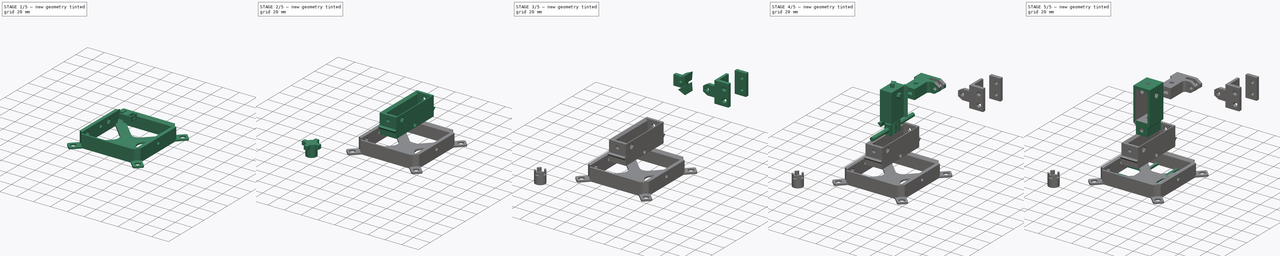
[diagram: build sequence overview — one tinted view per stage of 5, left to right]
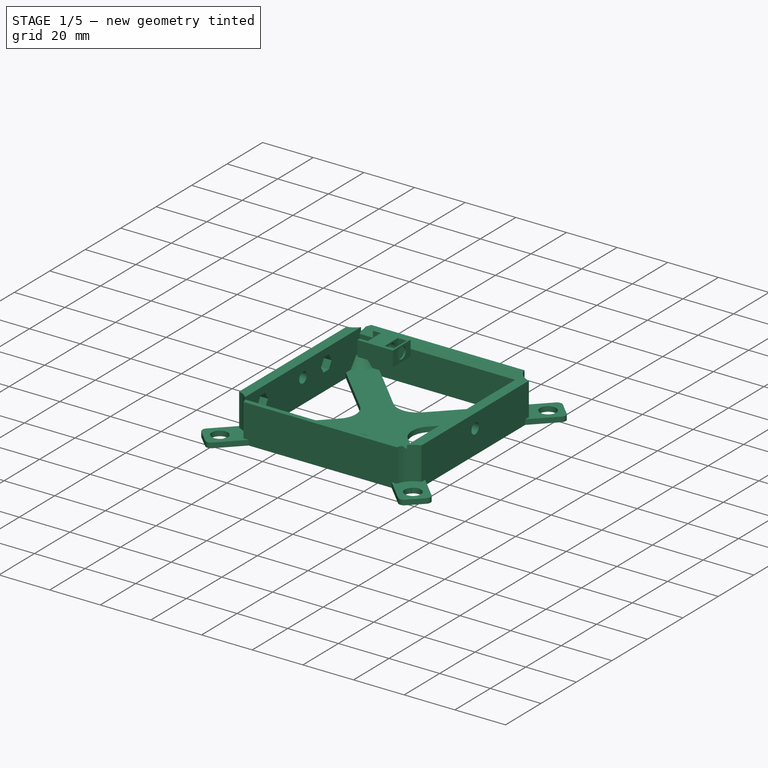
[diagram: stage 1 of 5 — iso view after this stage's code; geometry added in this stage tinted green]
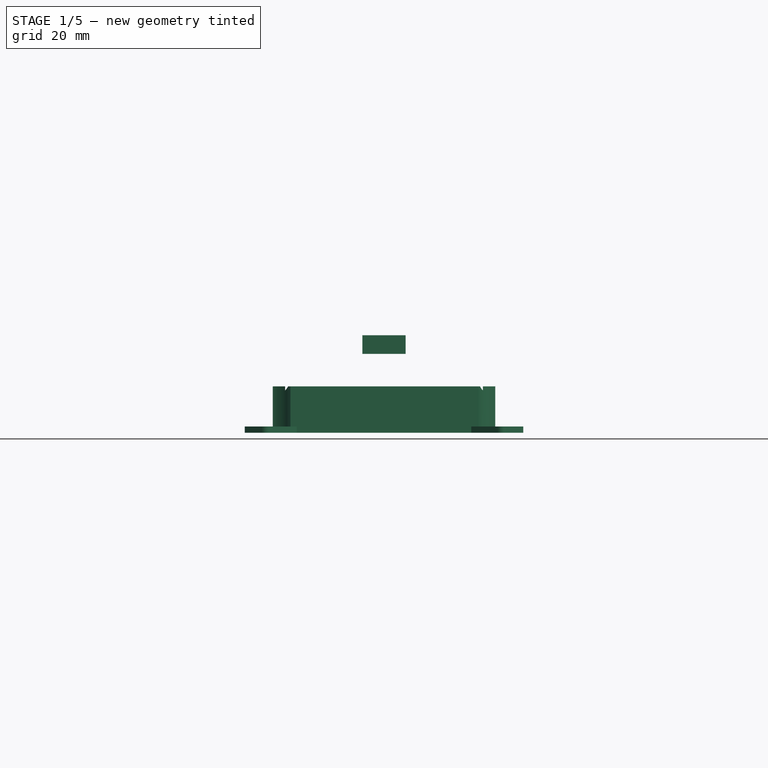
[diagram: stage 1 of 5 — front view after this stage's code; geometry added in this stage tinted green]
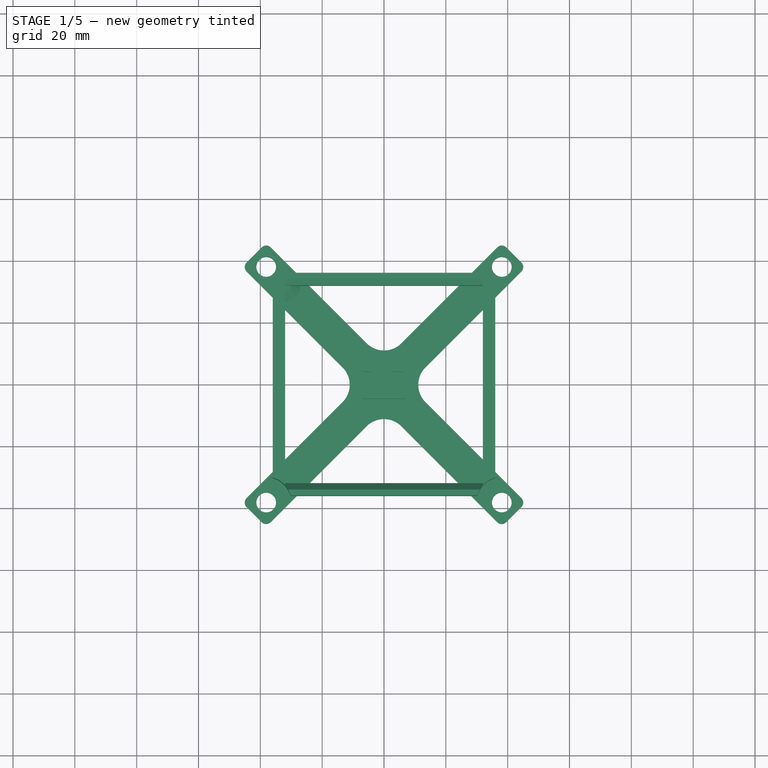
[diagram: stage 1 of 5 — top view after this stage's code; geometry added in this stage tinted green]
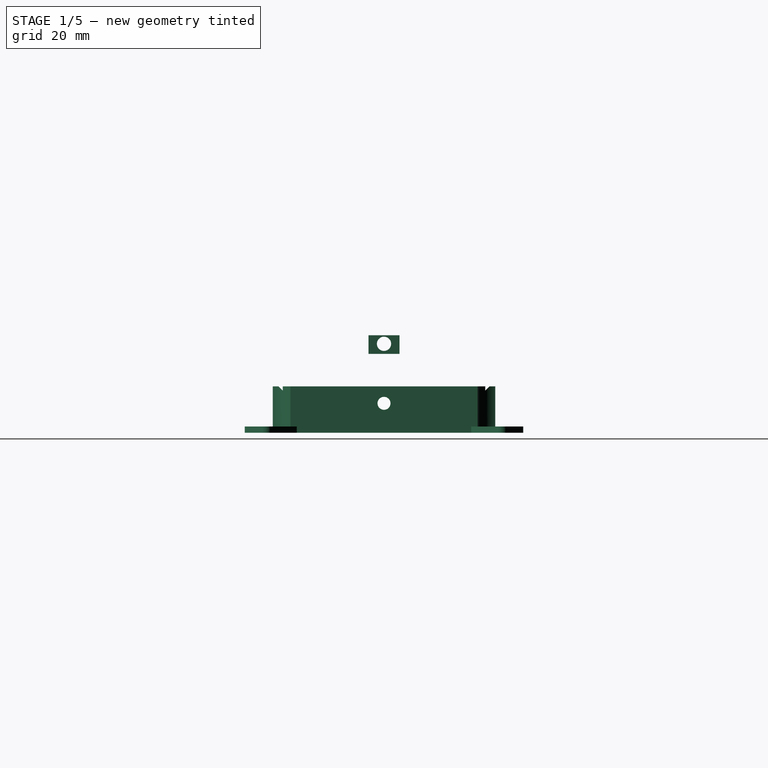
[diagram: stage 1 of 5 — right view after this stage's code; geometry added in this stage tinted green]
FCSTD DOCUMENT  (FreeCAD 0.19R23634 (Git))
Label: linearstage
License: All rights reserved
LicenseURL: http://en.wikipedia.org/wiki/All_rights_reserved
objects: Part::Box×30, Part::Prism×23, Part::Cylinder×20, Part::MultiFuse×14, Part::Cut×8, PartDesign::FeatureBase×7, PartDesign::Body×7, PartDesign::CoordinateSystem×4, Sketcher::SketchObject×3, App::Part×2, PartDesign::Pad×1, PartDesign::Pocket×1, PartDesign::Revolution×1
note: 122 computed .brp shape members not serialized (recipe doc carries the construction recipe); baked Part::Feature solids carry a one-line shape summary decoded from their .brp

FEATURE [Part::Box] cube
  AttacherType = Attacher::AttachEngine3D
  Height = 15
  Length = 72
  Placement = pos=(-36,-36,-17) rot=(0,0,1;0rad)
  Width = 72
FEATURE [Part::Box] cube001
  AttacherType = Attacher::AttachEngine3D
  Height = 15
  Length = 64
  Placement = pos=(-32,-32,-17) rot=(0,0,1;0rad)
  Width = 64
FEATURE [Part::Cylinder] cylinder
  Angle = 360
  AttacherType = Attacher::AttachEngine3D
  Height = 73
  Placement = pos=(-36.5,8e-15,-7.5) rot=(0.57735,0.57735,0.57735;2.0944rad)
  Radius = 2.1
FEATURE [Part::Prism] prism
  AttacherType = Attacher::AttachEngine3D
  Circumradius = 3
  FirstAngle = 0
  Height = 64
  Placement = pos=(-32,32,-2) rot=(0.621515,0.476905,0.621515;2.25159rad)
  Polygon = 3
  SecondAngle = 0
FEATURE [Part::Prism] prism001
  AttacherType = Attacher::AttachEngine3D
  Circumradius = 3
  FirstAngle = 0
  Height = 64
  Placement = pos=(-32,-32,-2) rot=(0.621515,-0.476905,0.621515;4.0316rad)
  Polygon = 3
  SecondAngle = 0
FEATURE [Part::Prism] prism002
  AttacherType = Attacher::AttachEngine3D
  Circumradius = 3.1
  FirstAngle = 0
  Height = 3
  Placement = pos=(-35,13.05,-7.5) rot=(0.57735,0.57735,0.57735;2.0944rad)
  Polygon = 6
  SecondAngle = 0
FEATURE [Part::Prism] prism003
  AttacherType = Attacher::AttachEngine3D
  Circumradius = 3.1
  FirstAngle = 0
  Height = 3
  Placement = pos=(-35,-22.85,-7.5) rot=(0.57735,0.57735,0.57735;2.0944rad)
  Polygon = 6
  SecondAngle = 0
FEATURE [Part::Cylinder] cylinder001
  Angle = 360
  AttacherType = Attacher::AttachEngine3D
  Height = 6
  Placement = pos=(-36.5,13.05,-7.5) rot=(0.57735,0.57735,0.57735;2.0944rad)
  Radius = 1.8
FEATURE [Part::Cylinder] cylinder002
  Angle = 360
  AttacherType = Attacher::AttachEngine3D
  Height = 6
  Placement = pos=(-36.5,-22.85,-7.5) rot=(0.57735,0.57735,0.57735;2.0944rad)
  Radius = 1.8
FEATURE [Part::MultiFuse] Group
  Shapes = -> [cube001,cylinder,prism,prism001,prism002,prism003,cylinder001,cylinder002]
FEATURE [Part::Cut] difference
  Base = -> cube
  Tool = -> Group
FEATURE [Part::Box] cube012
  AttacherType = Attacher::AttachEngine3D
  Height = 6
  Length = 14
  Placement = pos=(-7,-5,8.5) rot=(0,0,1;0rad)
  Width = 10
FEATURE [Part::Cylinder] cylinder009
  Angle = 360
  AttacherType = Attacher::AttachEngine3D
  Height = 71
  Placement = pos=(-35.5,8e-15,11.75) rot=(0.57735,0.57735,0.57735;2.0944rad)
  Radius = 2.3
FEATURE [Part::Box] cube013
  AttacherType = Attacher::AttachEngine3D
  Height = 6
  Length = 3.2
  Placement = pos=(-7,-3.7,8.5) rot=(0,0,1;0rad)
  Width = 7.4
FEATURE [Part::Box] cube014
  AttacherType = Attacher::AttachEngine3D
  Height = 6
  Length = 3.52
  Placement = pos=(2.85194,-3.7,8.5) rot=(0,0,1;0rad)
  Width = 7.4
FEATURE [Part::MultiFuse] Group005
  Shapes = -> [cylinder009,cube013,cube014]
FEATURE [Part::Cut] difference003
  Base = -> cube012
  Tool = -> Group005
FEATURE [PartDesign::FeatureBase] BaseFeature
  BaseFeature = -> difference
FEATURE [PartDesign::Body] Body007  label="Nut"
  BaseFeature = -> difference007
  Group = -> [BaseFeature007]
  Origin = -> Origin007
  Tip = -> BaseFeature007
FEATURE [Sketcher::SketchObject] Sketch001
  FullyConstrained = true
  MapMode = 5
  Placement = pos=(0,0,-17) rot=(1,0,0;3.14159rad)
  sketch-geometry (28):
    g0: Circle CenterX=-38.1 CenterY=38.1 CenterZ=0 NormalX=0 NormalY=0 NormalZ=1 AngleXU=0 Radius=3.175
    g1: Circle CenterX=38.1 CenterY=38.1 CenterZ=0 NormalX=0 NormalY=0 NormalZ=1 AngleXU=0 Radius=3.175
    g2: Circle CenterX=-38.1 CenterY=-38.1 CenterZ=0 NormalX=0 NormalY=0 NormalZ=1 AngleXU=0 Radius=3.175
    g3: Circle CenterX=38.1 CenterY=-38.1 CenterZ=0 NormalX=0 NormalY=0 NormalZ=1 AngleXU=0 Radius=3.175
    g4: LineSegment StartX=-44.464 StartY=36.6858 StartZ=0 EndX=-13.435 EndY=5.65685 EndZ=0
    g5: LineSegment StartX=-13.435 StartY=-5.65685 StartZ=0 EndX=-44.464 EndY=-36.6858 EndZ=0
    g6: LineSegment StartX=-44.464 StartY=-39.5142 StartZ=0 EndX=-39.5142 EndY=-44.464 EndZ=0
    g7: LineSegment StartX=-36.6858 StartY=-44.464 StartZ=0 EndX=-5.65685 EndY=-13.435 EndZ=0
    g8: LineSegment StartX=5.65685 StartY=-13.435 StartZ=0 EndX=36.6858 EndY=-44.464 EndZ=0
    g9: LineSegment StartX=39.5142 StartY=-44.464 StartZ=0 EndX=44.464 EndY=-39.5142 EndZ=0
    g10: LineSegment StartX=44.464 StartY=-36.6858 StartZ=0 EndX=13.435 EndY=-5.65685 EndZ=0
    g11: LineSegment StartX=13.435 StartY=5.65685 StartZ=0 EndX=44.464 EndY=36.6858 EndZ=0
    g12: LineSegment StartX=44.464 StartY=39.5142 StartZ=0 EndX=39.5142 EndY=44.464 EndZ=0
    g13: LineSegment StartX=36.6858 StartY=44.464 StartZ=0 EndX=5.65685 EndY=13.435 EndZ=0
    g14: LineSegment StartX=-5.65685 StartY=13.435 StartZ=0 EndX=-36.6858 EndY=44.464 EndZ=0
    g15: LineSegment StartX=-39.5142 StartY=44.464 StartZ=0 EndX=-44.464 EndY=39.5142 EndZ=0
    g16: ArcOfCircle CenterX=-43.0497 CenterY=38.1 CenterZ=0 NormalX=0 NormalY=0 NormalZ=1 AngleXU=0 Radius=2 StartAngle=2.35619 EndAngle=3.92699
    g17: ArcOfCircle CenterX=-38.1 CenterY=43.0497 CenterZ=0 NormalX=0 NormalY=0 NormalZ=1 AngleXU=0 Radius=2 StartAngle=0.785398 EndAngle=2.35619
    g18: ArcOfCircle CenterX=38.1 CenterY=43.0497 CenterZ=0 NormalX=0 NormalY=0 NormalZ=1 AngleXU=0 Radius=2 StartAngle=0.785398 EndAngle=2.35619
    g19: ArcOfCircle CenterX=43.0497 CenterY=38.1 CenterZ=0 NormalX=0 NormalY=0 NormalZ=1 AngleXU=0 Radius=2 StartAngle=5.49779 EndAngle=7.06858
    g20: ArcOfCircle CenterX=43.0497 CenterY=-38.1 CenterZ=0 NormalX=0 NormalY=0 NormalZ=1 AngleXU=0 Radius=2 StartAngle=5.49779 EndAngle=7.06858
    g21: ArcOfCircle CenterX=38.1 CenterY=-43.0497 CenterZ=0 NormalX=0 NormalY=0 NormalZ=1 AngleXU=0 Radius=2 StartAngle=3.92699 EndAngle=5.49779
    g22: ArcOfCircle CenterX=-38.1 CenterY=-43.0497 CenterZ=0 NormalX=0 NormalY=0 NormalZ=1 AngleXU=0 Radius=2 StartAngle=3.92699 EndAngle=5.49779
    g23: ArcOfCircle CenterX=-43.0497 CenterY=-38.1 CenterZ=0 NormalX=0 NormalY=0 NormalZ=1 AngleXU=0 Radius=2 StartAngle=2.35619 EndAngle=3.92699
    g24: ArcOfCircle CenterX=-3e-15 CenterY=-19.0919 CenterZ=0 NormalX=0 NormalY=0 NormalZ=1 AngleXU=0 Radius=8 StartAngle=0.785398 EndAngle=2.35619
    g25: ArcOfCircle CenterX=19.0919 CenterY=1.4e-15 CenterZ=0 NormalX=0 NormalY=0 NormalZ=1 AngleXU=0 Radius=8 StartAngle=2.35619 EndAngle=3.92699
    g26: ArcOfCircle CenterX=-19.0919 CenterY=3.2e-15 CenterZ=0 NormalX=0 NormalY=0 NormalZ=1 AngleXU=0 Radius=8 StartAngle=5.49779 EndAngle=7.06858
    g27: ArcOfCircle CenterX=2.8e-15 CenterY=19.0919 CenterZ=0 NormalX=0 NormalY=0 NormalZ=1 AngleXU=0 Radius=8 StartAngle=3.92699 EndAngle=5.49779
  constraints (63):
    c: Diameter(g0) = 6.35
    c: Equal(g1,g3)
    c: Equal(g3,g2)
    c: DistanceX(g0,g1) = 76.2
    c: DistanceY(g2,g0) = 76.2
    c: Horizontal(g2,g3)
    c: Vertical(g3,g1)
    c: Symmetric(g0,g1,g-2)
    c: Symmetric(g0,g2,g-1)
    c: Equal(g0,g1)
    c: Parallel(g15,g9)
    c: Parallel(g9,g11)
    c: Parallel(g11,g13)
    c: Parallel(g13,g5)
    c: Parallel(g5,g7)
    c: Angle(g15) = -2.35619
    c: Parallel(g6,g4)
    c: Parallel(g4,g8)
    c: Parallel(g8,g10)
    c: Parallel(g10,g14)
    c: Parallel(g14,g12)
    c: Angle(g12) = 2.35619
    c: Tangent(g4,g16) = -1.5708
    c: Tangent(g15,g16) = -1.5708
    c: Tangent(g15,g17) = -1.5708
    c: Tangent(g14,g17) = -1.5708
    c: Tangent(g13,g18) = -1.5708
    c: Tangent(g12,g18) = -1.5708
    c: Tangent(g12,g19) = -1.5708
    c: Tangent(g11,g19) = -1.5708
    c: Tangent(g10,g20) = -1.5708
    c: Tangent(g9,g20) = -1.5708
    c: Tangent(g9,g21) = -1.5708
    c: Tangent(g8,g21) = -1.5708
    c: Tangent(g7,g22) = -1.5708
    c: Tangent(g6,g22) = -1.5708
    c: Tangent(g6,g23) = -1.5708
    c: Tangent(g5,g23) = -1.5708
    c: Tangent(g7,g24) = 1.5708
    c: Tangent(g8,g24) = 1.5708
    c: Tangent(g10,g25) = 1.5708
    c: Tangent(g11,g25) = 1.5708
    c: Tangent(g4,g26) = 1.5708
    c: Tangent(g5,g26) = 1.5708
    c: Tangent(g14,g27) = 1.5708
    c: Tangent(g13,g27) = 1.5708
    c: Diameter(g16) = 4
    c: Equal(g16, g17-g20) x4
    c: Equal(g16,g22)
    c: Equal(g16,g23)
    c: Diameter(g24) = 16
    c: Equal(g24,g26)
    c: Equal(g24,g27)
    c: Equal(g24,g25)
    c: Symmetric(g7,g8,g-2)
    c: Symmetric(g5,g4,g-1)
    c: Symmetric(g14,g13,g-2)
    c: Symmetric(g10,g11,g-1)
    c: Distance(g1,g12) = 5.5
    c: Distance(g1,g13) = 5.5
    c: Distance(g1,g11) = 5.5
    c: Distance(g2,g5) = 5.5
    c: Distance(g2,g7) = 5.5
FEATURE [PartDesign::Pad] Pad
  BaseFeature = -> BaseFeature
  Direction = (1,1,1)
  Length = 2
  Length2 = 100
  Profile = -> Sketch001
  Reversed = true
  Type = 0
FEATURE [Sketcher::SketchObject] Sketch
  FullyConstrained = true
  MapMode = 5
  Placement = pos=(0,0,-2) rot=(0,0,1;0rad)
  Support = -> [Pad]
  sketch-geometry (4):
    g0: Circle CenterX=-38.1 CenterY=-38.1 CenterZ=0 NormalX=0 NormalY=0 NormalZ=1 AngleXU=0 Radius=8.125
    g1: Circle CenterX=38.1 CenterY=-38.1 CenterZ=0 NormalX=0 NormalY=0 NormalZ=1 AngleXU=0 Radius=8.125
    g2: Circle CenterX=38.1 CenterY=38.1 CenterZ=0 NormalX=0 NormalY=0 NormalZ=1 AngleXU=0 Radius=8.125
    g3: Circle CenterX=-38.1 CenterY=38.1 CenterZ=0 NormalX=0 NormalY=0 NormalZ=1 AngleXU=0 Radius=8.125
  constraints (10):
    c: DistanceX(g3,g2) = 76.2
    c: Symmetric(g3,g2,g-2)
    c: DistanceY(g0,g3) = 76.2
    c: Horizontal(g0,g1)
    c: Symmetric(g3,g0,g-1)
    c: Vertical(g1,g2)
    c: Diameter(g0) = 16.25
    c: Equal(g0,g1)
    c: Equal(g1,g2)
    c: Equal(g2,g3)
FEATURE [PartDesign::Pocket] Pocket
  BaseFeature = -> Pad
  Length = 13
  Length2 = 100
  Profile = -> Sketch
  Type = 0
FEATURE [Sketcher::SketchObject] Sketch002
  ExternalGeometry = -> [Pocket]
  FullyConstrained = true
  MapMode = 5
  Placement = pos=(0,32,0) rot=(1,0,0;1.5708rad)
  Support = -> [Pocket]
  sketch-geometry (4):
    g0: LineSegment StartX=-32 StartY=-15 StartZ=0 EndX=-32 EndY=-11 EndZ=0
    g1: LineSegment StartX=-27 StartY=-15 StartZ=0 EndX=-32 EndY=-15 EndZ=0
    g2: LineSegment StartX=-32 StartY=-11 StartZ=0 EndX=-30 EndY=-11 EndZ=0
    g3: LineSegment StartX=-30 StartY=-11 StartZ=0 EndX=-27 EndY=-15 EndZ=0
  constraints (12):
    c: PointOnObject(g0,g-4)
    c: PointOnObject(g0,g-4)
    c: PointOnObject(g1,g-3)
    c: Coincident(g1,g0)
    c: Horizontal(g1)
    c: Distance(g0) = 4
    c: Distance(g1) = 5
    c: Coincident(g2,g0)
    c: Coincident(g3,g2)
    c: Coincident(g3,g1)
    c: Distance(g2) = 2
    c: Horizontal(g2)
FEATURE [PartDesign::Revolution] Revolution
  Angle = 90
  Axis = (0,0,1)
  Base = (-32,32,-17)
  BaseFeature = -> Pocket
  Profile = -> Sketch002
  ReferenceAxis = -> Pocket [Edge105]
  Reversed = true
FEATURE [PartDesign::Body] Body  label="Base Square"
  BaseFeature = -> difference
  Group = -> [BaseFeature,Sketch001,Pad,Sketch,Pocket,Sketch002,Revolution]
  Origin = -> Origin
  Tip = -> Revolution
FEATURE [PartDesign::CoordinateSystem] LCS_0
  AttacherType = Attacher::AttachEngine3D
  MapMode = 2
  Support = -> [X_Axis008]
FEATURE [PartDesign::CoordinateSystem] LCS_0001
  AttacherType = Attacher::AttachEngine3D
  MapMode = 2
  Support = -> [X_Axis009]
FEATURE [PartDesign::CoordinateSystem] Slider
  AttacherType = Attacher::AttachEngine3D
  MapMode = 45
  Placement = pos=(-6.20099e-07,31.9,14.3787) rot=(0.57735,0.57735,0.57735;2.0944rad)
  Support = -> [Fusion]
FEATURE [App::Part] Bottom_Slider
  Group = -> [LCS_0001,prism007,Group003,cylinder008,cylinder007,Group005,difference003,prism006,cube010,cube013,cube011,cube012,Group004,prism004,difference002,prism008,cylinder009,Body003,prism005,Body002,cube014,Fusion,Slider]
  Origin = -> Origin002
FEATURE [PartDesign::CoordinateSystem] Slider_Base
  AttacherType = Attacher::AttachEngine3D
  MapMode = 45
  Placement = pos=(-1.98432e-06,32,-4.12132) rot=(0.57735,0.57735,0.57735;2.0944rad)
  Support = -> [Revolution]
FEATURE [App::Part] Baseplate
  Group = -> [LCS_0,cube,prism003,cylinder001,prism,prism002,cylinder002,Group,prism001,cylinder,cube001,difference,Body,Slider_Base]
  Origin = -> Origin008
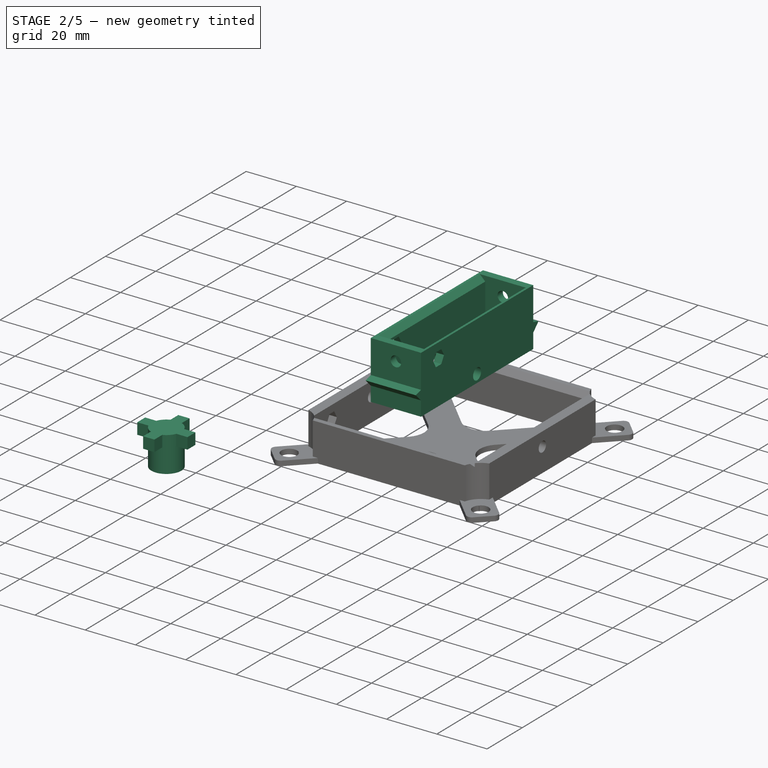
[diagram: stage 2 of 5 — iso view after this stage's code; geometry added in this stage tinted green]
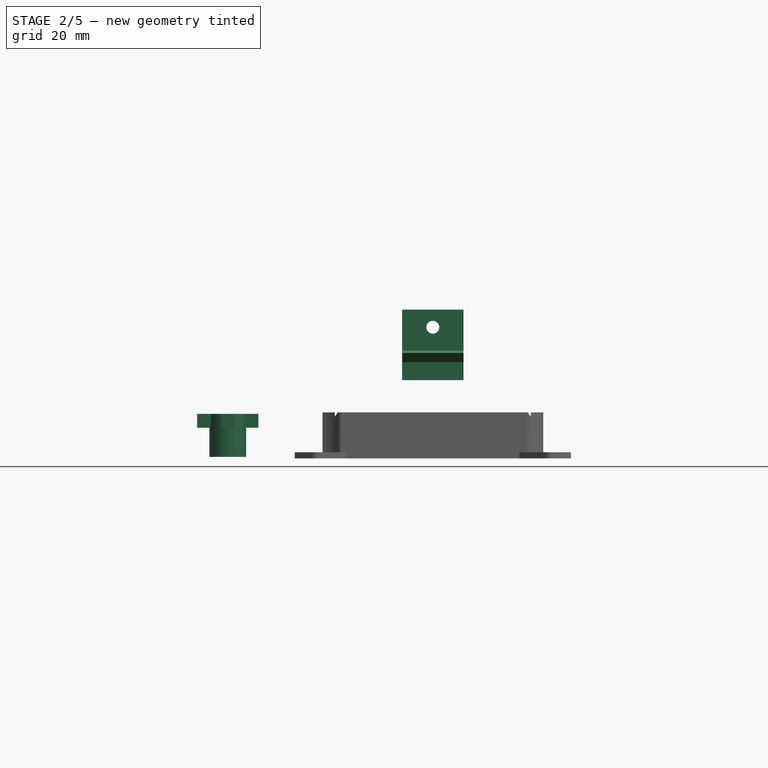
[diagram: stage 2 of 5 — front view after this stage's code; geometry added in this stage tinted green]
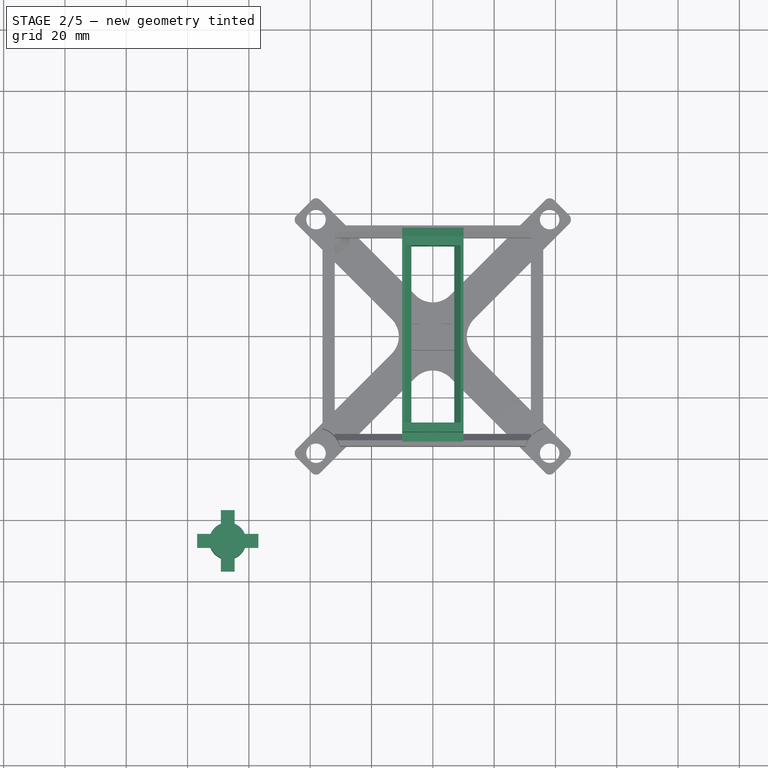
[diagram: stage 2 of 5 — top view after this stage's code; geometry added in this stage tinted green]
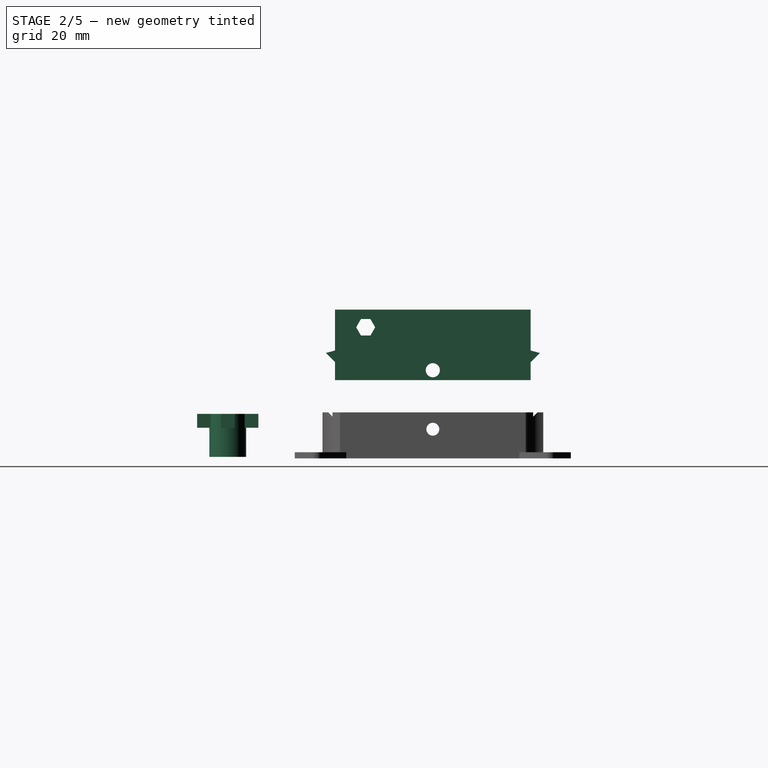
[diagram: stage 2 of 5 — right view after this stage's code; geometry added in this stage tinted green]
FEATURE [Part::Box] cube010
  AttacherType = Attacher::AttachEngine3D
  Height = 23
  Length = 20
  Placement = pos=(-10,-31.9,8.5) rot=(0,0,1;0rad)
  Width = 63.8
FEATURE [Part::Prism] prism004
  AttacherType = Attacher::AttachEngine3D
  Circumradius = 3
  FirstAngle = 0
  Height = 20
  Placement = pos=(-10,32,16.6) rot=(0.621515,0.476905,0.621515;2.25159rad)
  Polygon = 3
  SecondAngle = 0
FEATURE [Part::Prism] prism005
  AttacherType = Attacher::AttachEngine3D
  Circumradius = 3
  FirstAngle = 0
  Height = 20
  Placement = pos=(-10,-32,16.6) rot=(0.621515,-0.476905,0.621515;4.0316rad)
  Polygon = 3
  SecondAngle = 0
FEATURE [Part::MultiFuse] Group003
  Shapes = -> [cube010,prism004,prism005]
FEATURE [Part::Box] cube011
  AttacherType = Attacher::AttachEngine3D
  Height = 23
  Length = 14
  Placement = pos=(-7,-28.9,8.5) rot=(0,0,1;0rad)
  Width = 57.8
FEATURE [Part::Cylinder] cylinder007
  Angle = 360
  AttacherType = Attacher::AttachEngine3D
  Height = 71
  Placement = pos=(-35.5,8e-15,11.75) rot=(0.57735,0.57735,0.57735;2.0944rad)
  Radius = 2.3
FEATURE [Part::Cylinder] cylinder008
  Angle = 360
  AttacherType = Attacher::AttachEngine3D
  Height = 71
  Placement = pos=(0,35.5,25.75) rot=(1,0,0;1.5708rad)
  Radius = 2.1
FEATURE [Part::Prism] prism006
  AttacherType = Attacher::AttachEngine3D
  Circumradius = 3
  FirstAngle = 0
  Height = 57.8
  Placement = pos=(7,28.9,31.5) rot=(0.983106,-0.129428,0.129428;1.58783rad)
  Polygon = 3
  SecondAngle = 0
FEATURE [Part::Prism] prism007
  AttacherType = Attacher::AttachEngine3D
  Circumradius = 3
  FirstAngle = 0
  Height = 57.8
  Placement = pos=(-7,28.9,31.5) rot=(-0.092692,0.704063,-0.704063;3.32645rad)
  Polygon = 3
  SecondAngle = 0
FEATURE [Part::Prism] prism008
  AttacherType = Attacher::AttachEngine3D
  Circumradius = 3.1
  FirstAngle = 0
  Height = 21
  Placement = pos=(-10.5,-21.9,25.75) rot=(0.57735,0.57735,0.57735;2.0944rad)
  Polygon = 6
  SecondAngle = 0
FEATURE [Part::MultiFuse] Group004
  Shapes = -> [cube011,cylinder007,cylinder008,prism006,prism007,prism008]
FEATURE [Part::Cut] difference002
  Base = -> Group003
  Tool = -> Group004
FEATURE [Part::Cylinder] cylinder018
  Angle = 360
  AttacherType = Attacher::AttachEngine3D
  Height = 14
  Placement = pos=(-66.9,-66.9,-16.5) rot=(0,0,1;0rad)
  Radius = 6
FEATURE [Part::Prism] prism022
  AttacherType = Attacher::AttachEngine3D
  Circumradius = 4.2
  FirstAngle = 0
  Height = 10
  Placement = pos=(-66.9,-66.9,-16.5) rot=(0,0,1;0rad)
  Polygon = 6
  SecondAngle = 0
FEATURE [Part::Cylinder] cylinder019
  Angle = 360
  AttacherType = Attacher::AttachEngine3D
  Height = 4.5
  Placement = pos=(-66.9,-66.9,-7) rot=(0,0,1;0rad)
  Radius = 4
FEATURE [Part::Box] cube028
  AttacherType = Attacher::AttachEngine3D
  Height = 4.5
  Length = 20
  Placement = pos=(-76.9,-69.15,-7) rot=(0,0,1;0rad)
  Width = 4.5
FEATURE [Part::Box] cube029
  AttacherType = Attacher::AttachEngine3D
  Height = 4.5
  Length = 4.5
  Placement = pos=(-69.15,-76.9,-7) rot=(0,0,1;0rad)
  Width = 20
FEATURE [Part::MultiFuse] Group012
  Shapes = -> [prism022,cylinder019,cube028,cube029]
FEATURE [PartDesign::FeatureBase] BaseFeature002
  BaseFeature = -> difference002
FEATURE [PartDesign::Body] Body002
  BaseFeature = -> difference002
  Group = -> [BaseFeature002]
  Origin = -> Origin002
  Tip = -> BaseFeature002
FEATURE [PartDesign::FeatureBase] BaseFeature003
  BaseFeature = -> difference003
FEATURE [PartDesign::Body] Body003
  BaseFeature = -> difference003
  Group = -> [BaseFeature003]
  Origin = -> Origin003
  Tip = -> BaseFeature003
FEATURE [Part::MultiFuse] Fusion  label="Bottom Slider"
  Shapes = -> [Body002,Body003]
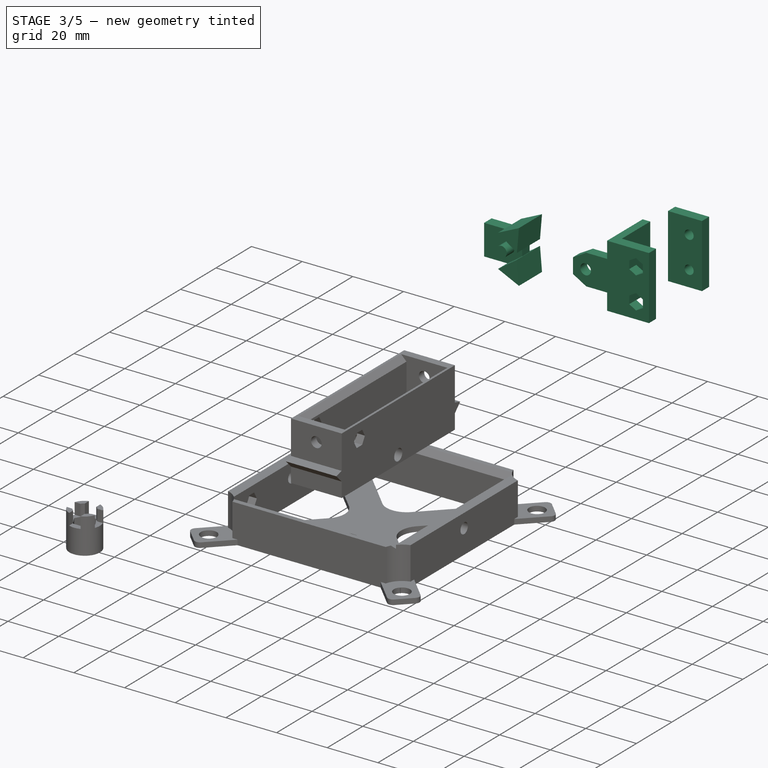
[diagram: stage 3 of 5 — iso view after this stage's code; geometry added in this stage tinted green]
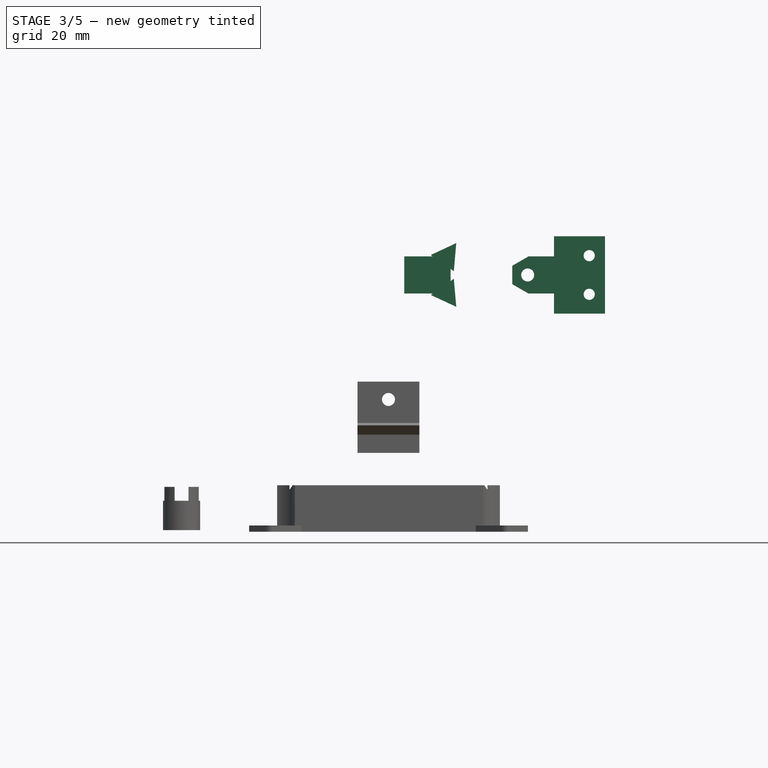
[diagram: stage 3 of 5 — front view after this stage's code; geometry added in this stage tinted green]
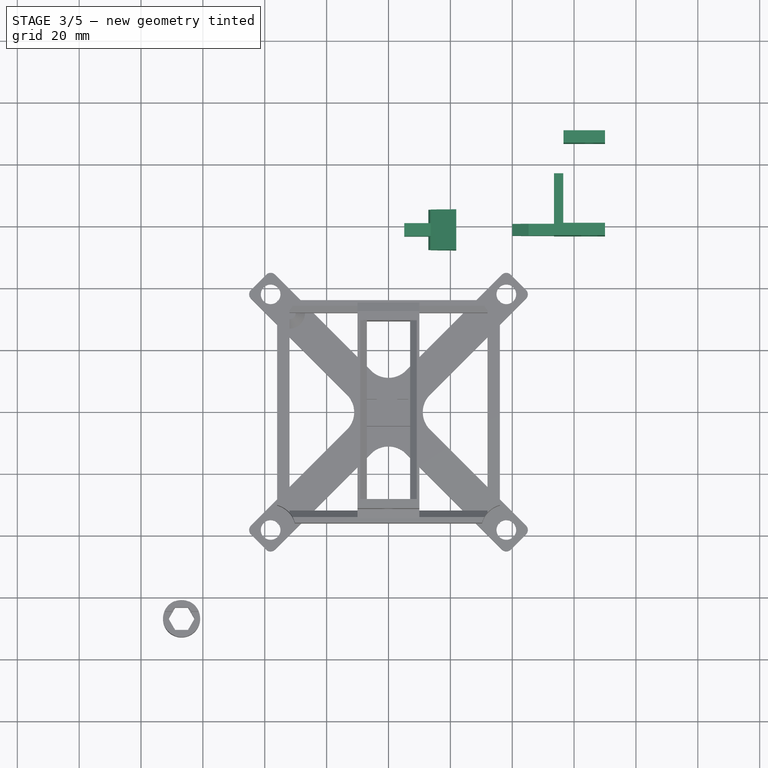
[diagram: stage 3 of 5 — top view after this stage's code; geometry added in this stage tinted green]
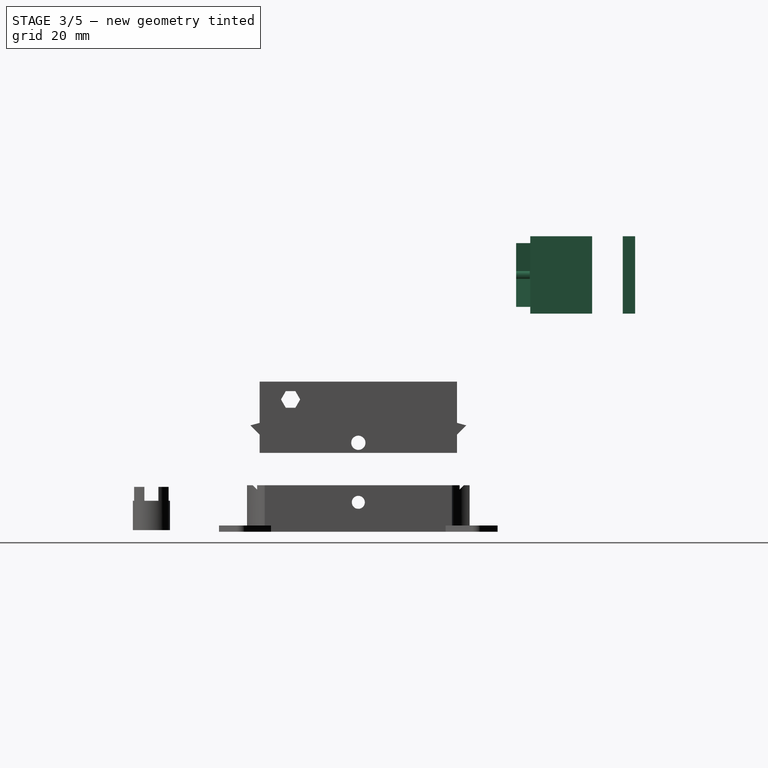
[diagram: stage 3 of 5 — right view after this stage's code; geometry added in this stage tinted green]
FEATURE [Part::Box] cube023
  AttacherType = Attacher::AttachEngine3D
  Height = 12
  Length = 15
  Placement = pos=(5.1,55.4,60) rot=(0,0,1;0rad)
  Width = 4.2
FEATURE [Part::Cylinder] cylinder014
  Angle = 360
  AttacherType = Attacher::AttachEngine3D
  Height = 13
  Placement = pos=(15,64,66) rot=(1,0,0;1.5708rad)
  Radius = 2.1
FEATURE [Part::Prism] prism016
  AttacherType = Attacher::AttachEngine3D
  Circumradius = 5.25
  FirstAngle = 0
  Height = 13
  Placement = pos=(18.9,64,72) rot=(0.742942,0.473306,-0.473306;1.86366rad)
  Polygon = 3
  SecondAngle = 0
FEATURE [Part::Prism] prism017
  AttacherType = Attacher::AttachEngine3D
  Circumradius = 5.25
  FirstAngle = 0
  Height = 13
  Placement = pos=(18.9,64,60) rot=(0.030858,0.70677,-0.70677;3.0799rad)
  Polygon = 3
  SecondAngle = 0
FEATURE [Part::Box] cube024
  AttacherType = Attacher::AttachEngine3D
  Height = 12
  Length = 15
  Placement = pos=(40,55.6,60) rot=(0,0,1;0rad)
  Width = 3.8
FEATURE [Part::Box] cube025
  AttacherType = Attacher::AttachEngine3D
  Height = 25
  Length = 3
  Placement = pos=(53.5,55.6,53.5) rot=(0,0,1;0rad)
  Width = 20
FEATURE [Part::Box] cube026
  AttacherType = Attacher::AttachEngine3D
  Height = 25
  Length = 15
  Placement = pos=(55,55.6,53.5) rot=(0,0,1;0rad)
  Width = 4
FEATURE [Part::Box] cube027
  AttacherType = Attacher::AttachEngine3D
  Height = 25
  Length = 13.4
  Placement = pos=(56.6,85.5,53.5) rot=(0,0,1;0rad)
  Width = 4
FEATURE [Part::MultiFuse] Group010
  Shapes = -> [cube024,cube025,cube026,cube027]
FEATURE [Part::Cylinder] cylinder015
  Angle = 360
  AttacherType = Attacher::AttachEngine3D
  Height = 13
  Placement = pos=(45,64,66) rot=(1,0,0;1.5708rad)
  Radius = 2.1
FEATURE [Part::Prism] prism018
  AttacherType = Attacher::AttachEngine3D
  Circumradius = 5.25
  FirstAngle = 0
  Height = 13
  Placement = pos=(40,64,72) rot=(1,0,0;1.5708rad)
  Polygon = 3
  SecondAngle = 0
FEATURE [Part::Prism] prism019
  AttacherType = Attacher::AttachEngine3D
  Circumradius = 5.25
  FirstAngle = 0
  Height = 13
  Placement = pos=(40,64,60) rot=(1,0,0;1.5708rad)
  Polygon = 3
  SecondAngle = 0
FEATURE [Part::Prism] prism020
  AttacherType = Attacher::AttachEngine3D
  Circumradius = 3.1
  FirstAngle = 0
  Height = 6
  Placement = pos=(64.9,60.5,72.25) rot=(0.935113,0.250563,-0.250563;1.63783rad)
  Polygon = 6
  SecondAngle = 0
FEATURE [Part::Cylinder] cylinder016
  Angle = 360
  AttacherType = Attacher::AttachEngine3D
  Height = 6
  Placement = pos=(64.9,90.5,72.25) rot=(1,0,0;1.5708rad)
  Radius = 1.8
FEATURE [Part::Prism] prism021
  AttacherType = Attacher::AttachEngine3D
  Circumradius = 3.1
  FirstAngle = 0
  Height = 6
  Placement = pos=(64.9,60.5,59.75) rot=(0.935113,0.250563,-0.250563;1.63783rad)
  Polygon = 6
  SecondAngle = 0
FEATURE [Part::Cylinder] cylinder017
  Angle = 360
  AttacherType = Attacher::AttachEngine3D
  Height = 6
  Placement = pos=(64.9,90.5,59.75) rot=(1,0,0;1.5708rad)
  Radius = 1.8
FEATURE [Part::MultiFuse] Group011
  Shapes = -> [cylinder015,prism018,prism019,prism020,cylinder016,prism021,cylinder017]
FEATURE [Part::Cut] difference006
  Base = -> Group010
  Tool = -> Group011
FEATURE [Part::Cut] difference007
  Base = -> cylinder018
  Tool = -> Group012
FEATURE [PartDesign::Body] Body005  label="UpDown"
  BaseFeature = -> difference005
  Group = -> [BaseFeature005]
  Origin = -> Origin005
  Tip = -> BaseFeature005
FEATURE [PartDesign::FeatureBase] BaseFeature006
  BaseFeature = -> difference006
FEATURE [PartDesign::Body] Body006  label="Manipulator"
  BaseFeature = -> difference006
  Group = -> [BaseFeature006]
  Origin = -> Origin006
  Tip = -> BaseFeature006
FEATURE [PartDesign::FeatureBase] BaseFeature007
  BaseFeature = -> difference007
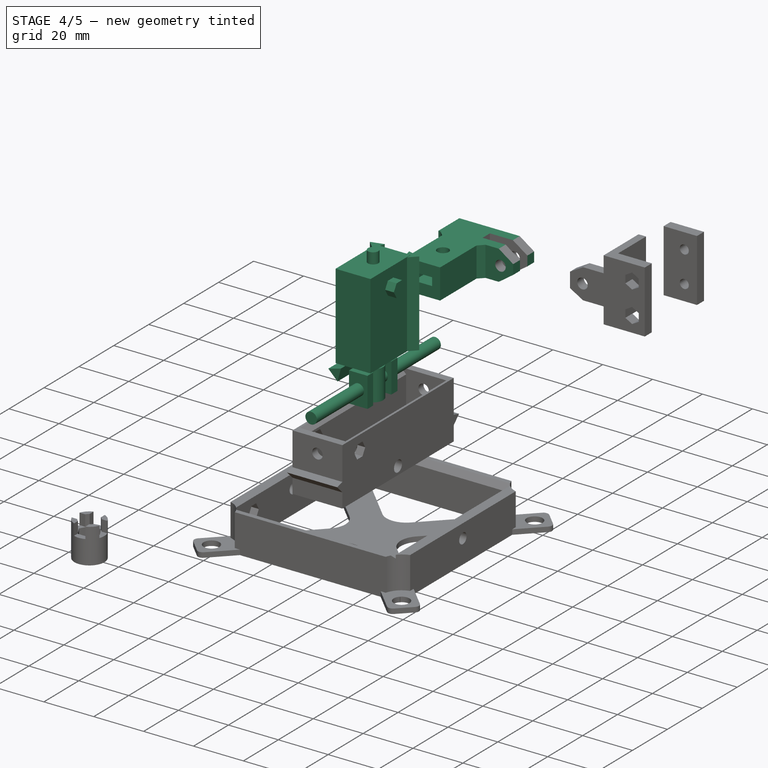
[diagram: stage 4 of 5 — iso view after this stage's code; geometry added in this stage tinted green]
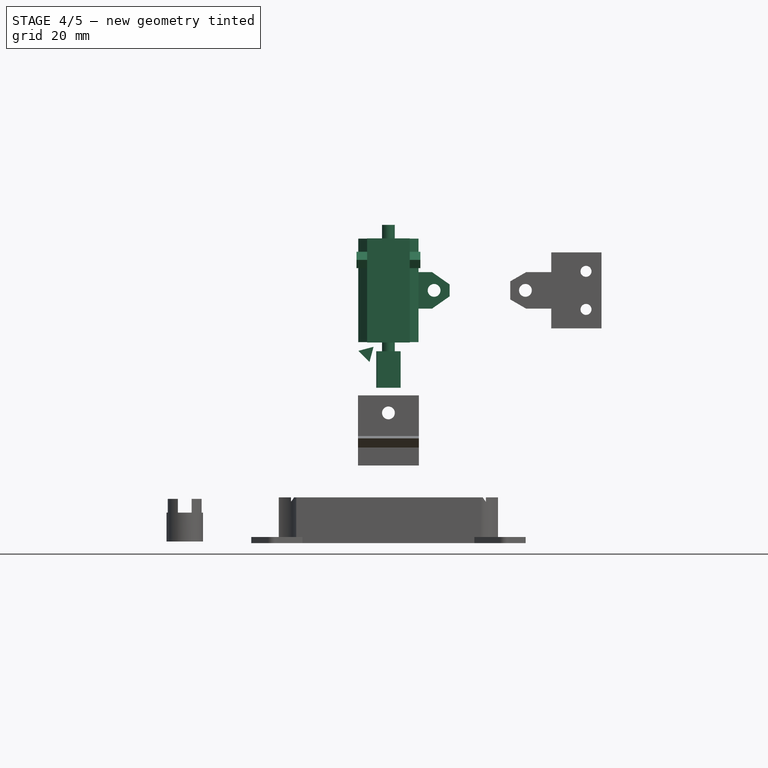
[diagram: stage 4 of 5 — front view after this stage's code; geometry added in this stage tinted green]
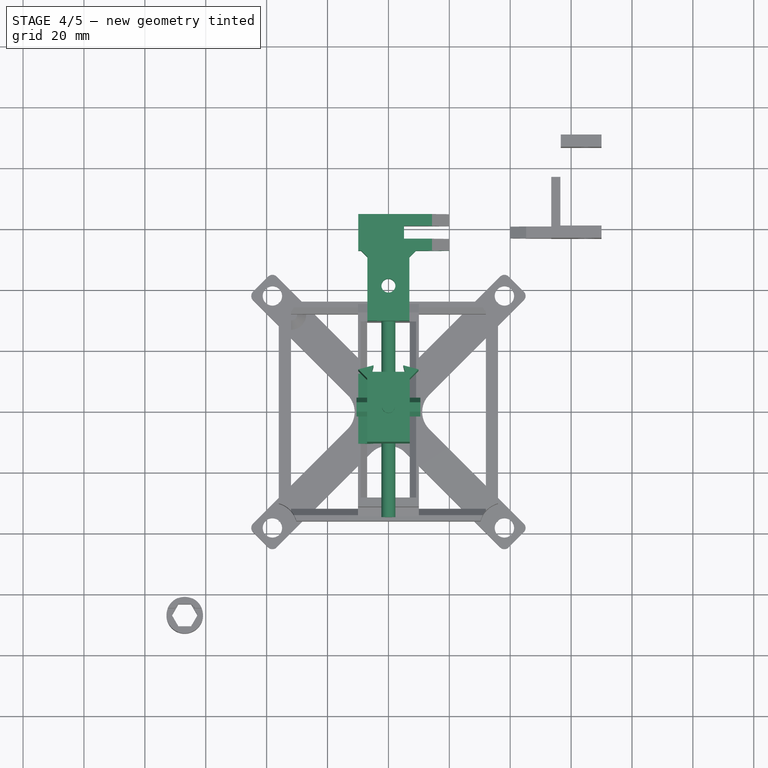
[diagram: stage 4 of 5 — top view after this stage's code; geometry added in this stage tinted green]
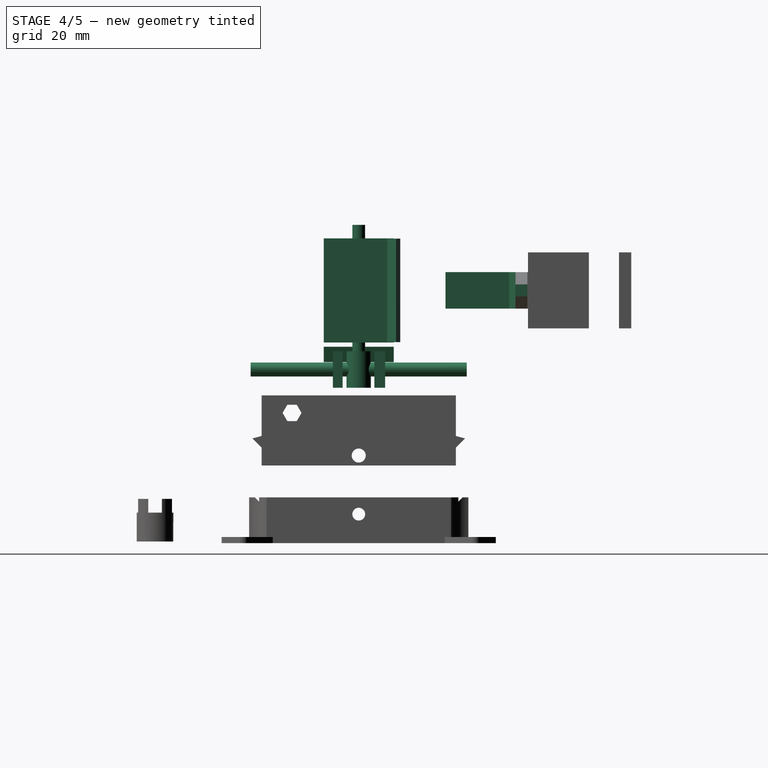
[diagram: stage 4 of 5 — right view after this stage's code; geometry added in this stage tinted green]
FEATURE [Part::Prism] prism010
  AttacherType = Attacher::AttachEngine3D
  Circumradius = 3
  FirstAngle = 0
  Height = 23
  Placement = pos=(-7,11.5,45.35) rot=(-0.092692,0.704063,-0.704063;3.32645rad)
  Polygon = 3
  SecondAngle = 0
FEATURE [Part::Box] cube017
  AttacherType = Attacher::AttachEngine3D
  Height = 34.2
  Length = 14
  Placement = pos=(-7,-11.5,48.9) rot=(0,0,1;0rad)
  Width = 23
FEATURE [Part::Cylinder] cylinder010
  Angle = 360
  AttacherType = Attacher::AttachEngine3D
  Height = 43
  Placement = pos=(0,0,44.5) rot=(0,0,1;0rad)
  Radius = 2.1
FEATURE [Part::Cylinder] cylinder011
  Angle = 360
  AttacherType = Attacher::AttachEngine3D
  Height = 12
  Placement = pos=(0,0,34) rot=(0,0,1;0rad)
  Radius = 4
FEATURE [Part::Cylinder] cylinder012
  Angle = 360
  AttacherType = Attacher::AttachEngine3D
  Height = 71
  Placement = pos=(0,35.5,40) rot=(1,0,0;1.5708rad)
  Radius = 2.3
FEATURE [Part::Box] cube018
  AttacherType = Attacher::AttachEngine3D
  Height = 12
  Length = 7.4
  Placement = pos=(-3.7,-8.5,34) rot=(0,0,1;0rad)
  Width = 3.2
FEATURE [Part::Box] cube019
  AttacherType = Attacher::AttachEngine3D
  Height = 12
  Length = 7.4
  Placement = pos=(-3.7,5.14,34) rot=(0,0,1;0rad)
  Width = 3.52
FEATURE [Part::Prism] prism011
  AttacherType = Attacher::AttachEngine3D
  Circumradius = 3
  FirstAngle = 0
  Height = 34
  Placement = pos=(7,11.5,49) rot=(0,0,1;0.261799rad)
  Polygon = 3
  SecondAngle = 0
FEATURE [Part::Prism] prism012
  AttacherType = Attacher::AttachEngine3D
  Circumradius = 3
  FirstAngle = 0
  Height = 34
  Placement = pos=(-7,11.5,49) rot=(0,0,-1;1.309rad)
  Polygon = 3
  SecondAngle = 0
FEATURE [Part::Prism] prism013
  AttacherType = Attacher::AttachEngine3D
  Circumradius = 3.1
  FirstAngle = 0
  Height = 21
  Placement = pos=(-10.5,2e-15,76) rot=(0.57735,0.57735,0.57735;2.0944rad)
  Polygon = 6
  SecondAngle = 0
FEATURE [Part::MultiFuse] Group007
  Shapes = -> [cube017,cylinder010,cylinder011,cylinder012,cube018,cube019,prism011,prism012,prism013]
FEATURE [Part::Box] cube020
  AttacherType = Attacher::AttachEngine3D
  Height = 12
  Length = 13.8
  Placement = pos=(-6.9,28.5,60) rot=(0,0,1;0rad)
  Width = 23
FEATURE [Part::Prism] prism014
  AttacherType = Attacher::AttachEngine3D
  Circumradius = 3
  FirstAngle = 0
  Height = 12
  Placement = pos=(7,51.6,60) rot=(0,0,1;0.261799rad)
  Polygon = 3
  SecondAngle = 0
FEATURE [Part::Prism] prism015
  AttacherType = Attacher::AttachEngine3D
  Circumradius = 3
  FirstAngle = 0
  Height = 12
  Placement = pos=(-7,51.6,60) rot=(0,0,-1;1.309rad)
  Polygon = 3
  SecondAngle = 0
FEATURE [Part::Box] cube021
  AttacherType = Attacher::AttachEngine3D
  Height = 12
  Length = 30
  Placement = pos=(-9.9,51.5,60) rot=(0,0,1;0rad)
  Width = 12
FEATURE [Part::MultiFuse] Group008
  Shapes = -> [cube020,prism014,prism015,cube021]
FEATURE [Part::Cylinder] cylinder013
  Angle = 360
  AttacherType = Attacher::AttachEngine3D
  Height = 41
  Placement = pos=(0,40,51.5) rot=(0,0,1;0rad)
  Radius = 2.3
FEATURE [Part::Box] cube022
  AttacherType = Attacher::AttachEngine3D
  Height = 3.2
  Length = 7.4
  Placement = pos=(-3.7,15,64.4) rot=(0,0,1;0rad)
  Width = 50
FEATURE [Part::MultiFuse] Group009
  Shapes = -> [cylinder013,cube022,cube023,cylinder014,prism016,prism017]
FEATURE [Part::Cut] difference005
  Base = -> Group008
  Tool = -> Group009
FEATURE [PartDesign::Body] Body004  label="Side Slider"
  BaseFeature = -> difference004
  Group = -> [BaseFeature004]
  Origin = -> Origin004
  Tip = -> BaseFeature004
FEATURE [PartDesign::FeatureBase] BaseFeature005
  BaseFeature = -> difference005
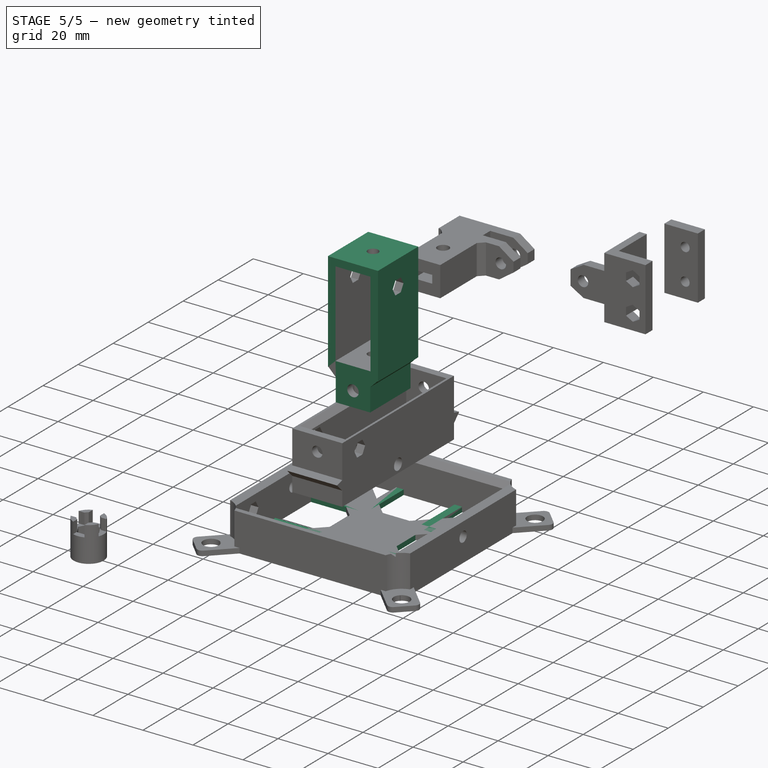
[diagram: stage 5 of 5 — iso view after this stage's code; geometry added in this stage tinted green]
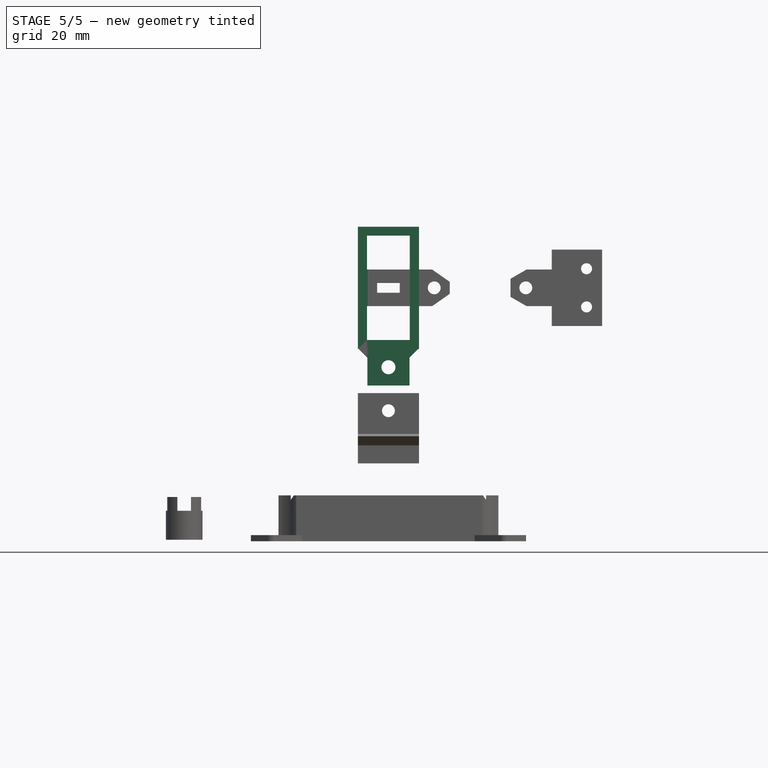
[diagram: stage 5 of 5 — front view after this stage's code; geometry added in this stage tinted green]
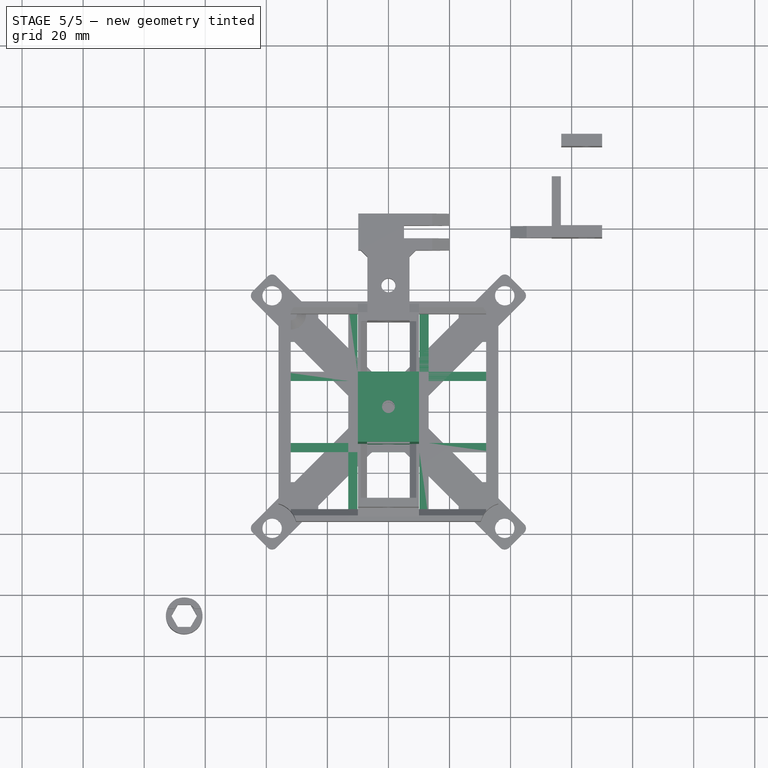
[diagram: stage 5 of 5 — top view after this stage's code; geometry added in this stage tinted green]
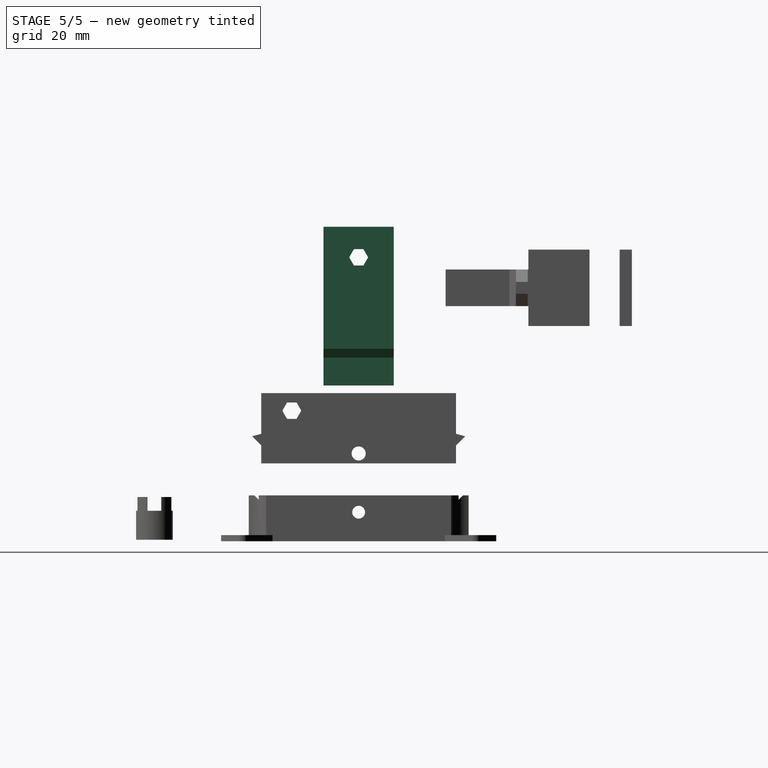
[diagram: stage 5 of 5 — right view after this stage's code; geometry added in this stage tinted green]
FEATURE [Part::Box] cube002
  AttacherType = Attacher::AttachEngine3D
  Height = 2
  Length = 70
  Placement = pos=(-35,10.1667,-17) rot=(0,0,1;0rad)
  Width = 3
FEATURE [Part::Box] cube003
  AttacherType = Attacher::AttachEngine3D
  Height = 2
  Length = 70
  Placement = pos=(-35,-13.1667,-17) rot=(0,0,1;0rad)
  Width = 3
FEATURE [Part::Box] cube004
  AttacherType = Attacher::AttachEngine3D
  Height = 2
  Length = 3
  Placement = pos=(10.1667,-35,-17) rot=(0,0,1;0rad)
  Width = 70
FEATURE [Part::Box] cube005
  AttacherType = Attacher::AttachEngine3D
  Height = 2
  Length = 3
  Placement = pos=(-13.1667,-35,-17) rot=(0,0,1;0rad)
  Width = 70
FEATURE [Part::Box] cube006
  AttacherType = Attacher::AttachEngine3D
  Height = 2
  Length = 9
  Placement = pos=(23,23,-17) rot=(0,0,1;0rad)
  Width = 9
FEATURE [Part::Box] cube007
  AttacherType = Attacher::AttachEngine3D
  Height = 2
  Length = 9
  Placement = pos=(-32,23,-17) rot=(0,0,1;0rad)
  Width = 9
FEATURE [Part::Box] cube008
  AttacherType = Attacher::AttachEngine3D
  Height = 2
  Length = 9
  Placement = pos=(23,-32,-17) rot=(0,0,1;0rad)
  Width = 9
FEATURE [Part::Box] cube009
  AttacherType = Attacher::AttachEngine3D
  Height = 2
  Length = 9
  Placement = pos=(-32,-32,-17) rot=(0,0,1;0rad)
  Width = 9
FEATURE [Part::MultiFuse] Group001
  Shapes = -> [cube002,cube003,cube004,cube005,cube006,cube007,cube008,cube009]
FEATURE [Part::Cylinder] cylinder003
  Angle = 360
  AttacherType = Attacher::AttachEngine3D
  Height = 3
  Placement = pos=(27.5,27.5,-17.5) rot=(0,0,1;0rad)
  Radius = 2.1
FEATURE [Part::Cylinder] cylinder004
  Angle = 360
  AttacherType = Attacher::AttachEngine3D
  Height = 3
  Placement = pos=(-27.5,27.5,-17.5) rot=(0,0,1;0rad)
  Radius = 2.1
FEATURE [Part::Cylinder] cylinder005
  Angle = 360
  AttacherType = Attacher::AttachEngine3D
  Height = 3
  Placement = pos=(27.5,-27.5,-17.5) rot=(0,0,1;0rad)
  Radius = 2.1
FEATURE [Part::Cylinder] cylinder006
  Angle = 360
  AttacherType = Attacher::AttachEngine3D
  Height = 3
  Placement = pos=(-27.5,-27.5,-17.5) rot=(0,0,1;0rad)
  Radius = 2.1
FEATURE [Part::MultiFuse] Group002
  Shapes = -> [cylinder003,cylinder004,cylinder005,cylinder006]
FEATURE [Part::Cut] difference001
  Base = -> Group001
  Tool = -> Group002
FEATURE [Part::Box] cube015
  AttacherType = Attacher::AttachEngine3D
  Height = 40
  Length = 20
  Placement = pos=(-10,-11.5,46) rot=(0,0,1;0rad)
  Width = 23
FEATURE [Part::Box] cube016
  AttacherType = Attacher::AttachEngine3D
  Height = 12
  Length = 13.8
  Placement = pos=(-6.9,-11.5,34) rot=(0,0,1;0rad)
  Width = 23
FEATURE [Part::Prism] prism009
  AttacherType = Attacher::AttachEngine3D
  Circumradius = 3
  FirstAngle = 0
  Height = 23
  Placement = pos=(7,11.5,45.35) rot=(0.983106,-0.129428,0.129428;1.58783rad)
  Polygon = 3
  SecondAngle = 0
FEATURE [Part::MultiFuse] Group006
  Shapes = -> [cube015,cube016,prism009,prism010]
FEATURE [Part::Cut] difference004
  Base = -> Group006
  Tool = -> Group007
FEATURE [PartDesign::FeatureBase] BaseFeature004
  BaseFeature = -> difference004
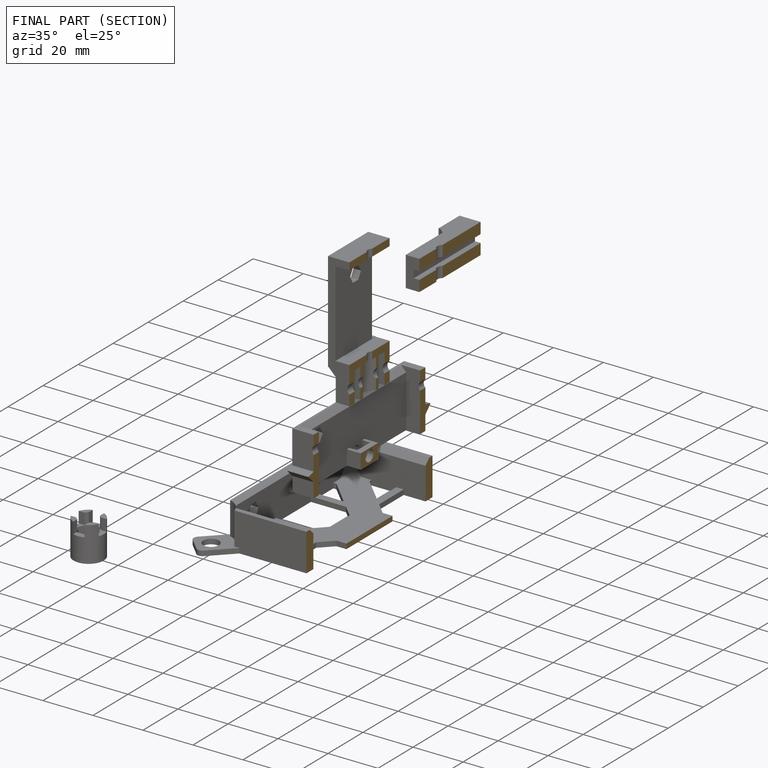
[diagram: finished part — half-section view (interior)]
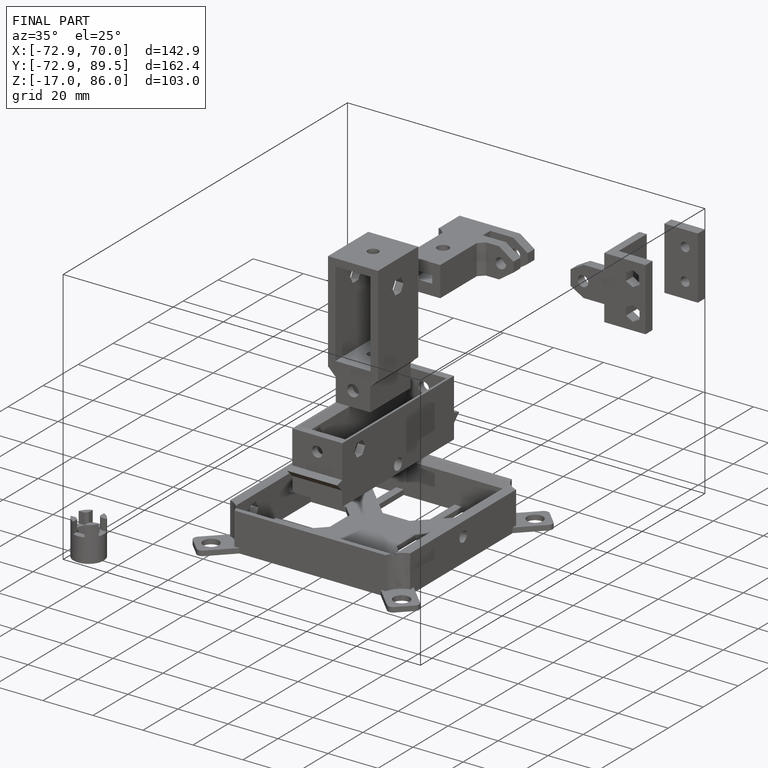
[diagram: finished part — iso view with bounding-box wireframe]
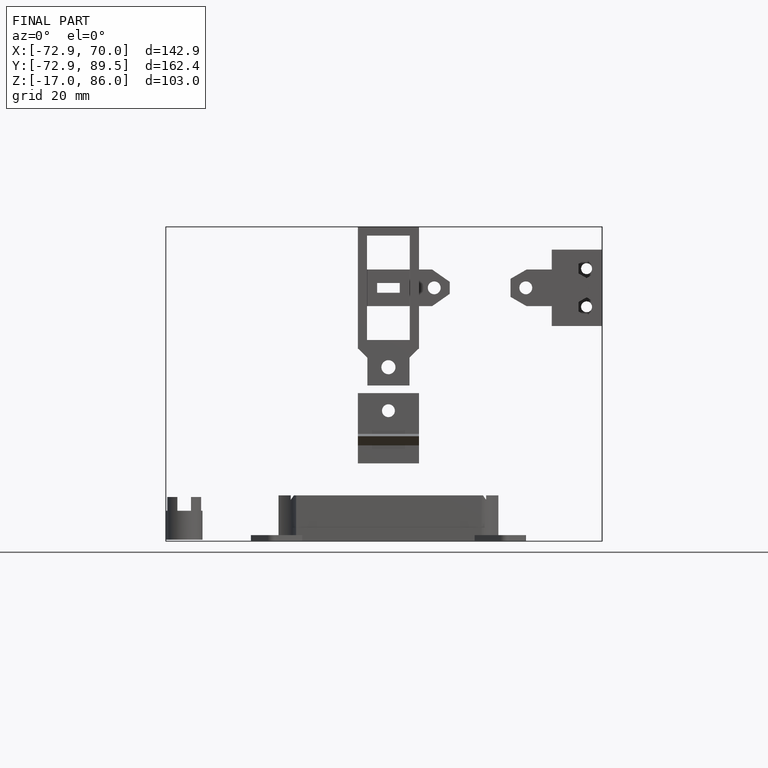
[diagram: finished part — front view with bounding-box wireframe]
